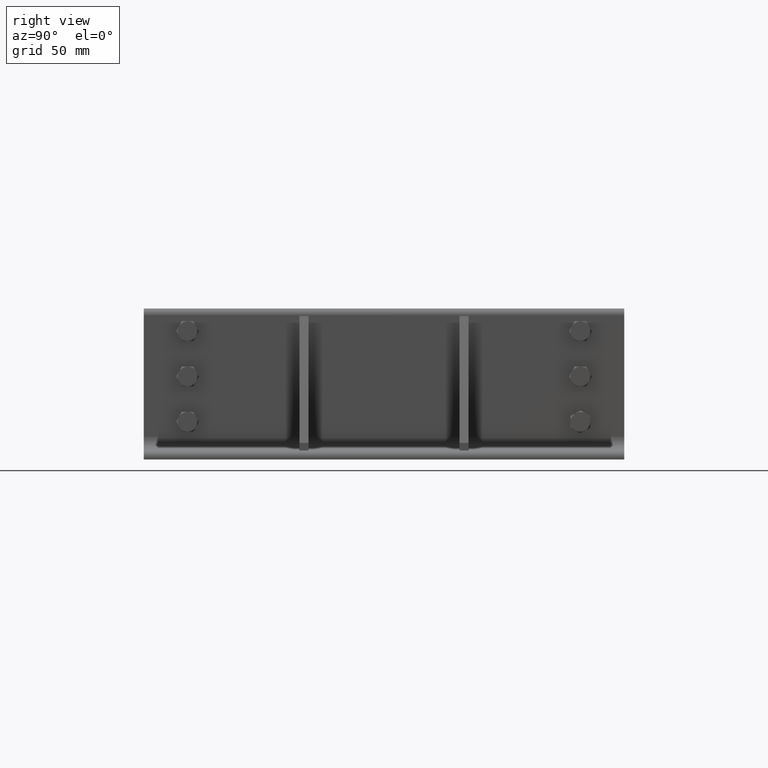
[diagram: clean part render]
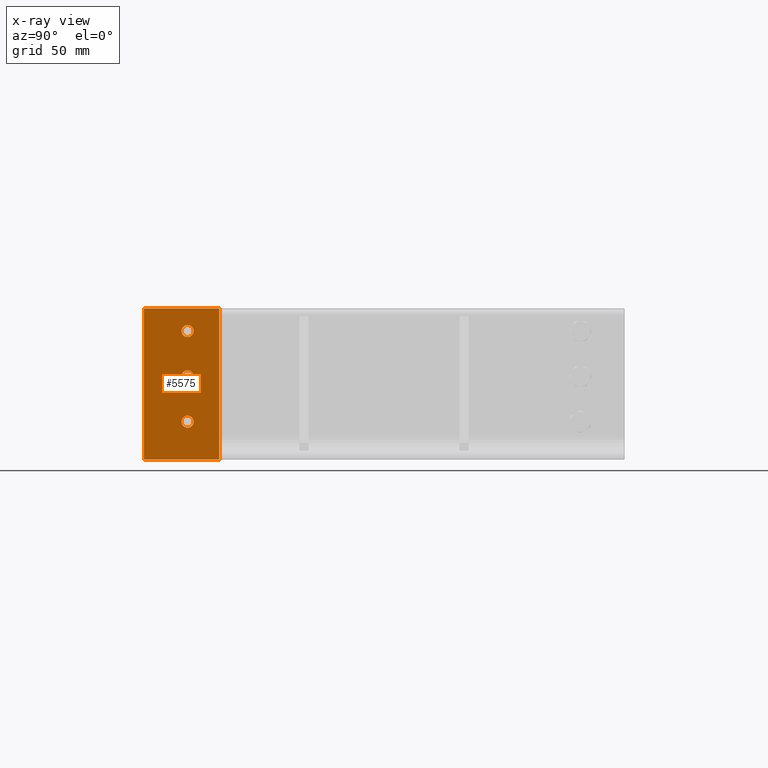
[diagram: x-ray — body ghosted, one internal face saturated and labeled with its STEP entity id]
A machine part, right view, then the same camera in x-ray: the body is ghosted and one INTERNAL B-rep face — a face not visible from any outside direction — is saturated and labeled: STEP entity #5575.
In plain terms, the highlighted planar face has unit normal (1, -0, 0).
Its self-contained STEP definition (entity closure, byte-faithful):
#5363=CARTESIAN_POINT('',(30.999999999999996,0.35,3.999999999999997));
#5364=VERTEX_POINT('',#5363);
#5365=CARTESIAN_POINT('',(34.999999999999993,0.350000000000001,3.999999999999997));
#5366=DIRECTION('',(0.0,-1.0,0.0));
#5367=DIRECTION('',(-1.0,0.0,0.0));
#5368=AXIS2_PLACEMENT_3D('',#5365,#5366,#5367);
#5369=CIRCLE('',#5368,4.0);
#5370=EDGE_CURVE('',#5364,#5364,#5369,.T.);
#5391=CARTESIAN_POINT('',(0.999999999999996,0.35,4.000000000000007));
#5392=VERTEX_POINT('',#5391);
#5393=CARTESIAN_POINT('',(4.999999999999996,0.350000000000001,4.000000000000007));
#5394=DIRECTION('',(0.0,-1.0,0.0));
#5395=DIRECTION('',(-1.0,0.0,0.0));
#5396=AXIS2_PLACEMENT_3D('',#5393,#5394,#5395);
#5397=CIRCLE('',#5396,4.0);
#5398=EDGE_CURVE('',#5392,#5392,#5397,.T.);
#5419=CARTESIAN_POINT('',(-29.000000000000004,0.35,4.000000000000016));
#5420=VERTEX_POINT('',#5419);
#5421=CARTESIAN_POINT('',(-25.000000000000004,0.350000000000001,4.000000000000016));
#5422=DIRECTION('',(0.0,-1.0,0.0));
#5423=DIRECTION('',(-1.0,0.0,0.0));
#5424=AXIS2_PLACEMENT_3D('',#5421,#5422,#5423);
#5425=CIRCLE('',#5424,4.0);
#5426=EDGE_CURVE('',#5420,#5420,#5425,.T.);
#5446=CARTESIAN_POINT('',(-50.0,0.35,25.000000000000028));
#5447=VERTEX_POINT('',#5446);
#5454=CARTESIAN_POINT('',(-50.0,0.35,-24.999999999999996));
#5455=VERTEX_POINT('',#5454);
#5456=CARTESIAN_POINT('',(-50.0,0.35,-24.999999999999986));
#5457=DIRECTION('',(0.0,0.0,1.0));
#5458=VECTOR('',#5457,50.000000000000014);
#5459=LINE('',#5456,#5458);
#5460=EDGE_CURVE('',#5455,#5447,#5459,.T.);
#5485=CARTESIAN_POINT('',(50.0,0.35,-24.999999999999996));
#5486=VERTEX_POINT('',#5485);
#5487=CARTESIAN_POINT('',(50.0,0.35,-24.999999999999996));
#5488=DIRECTION('',(-1.0,0.0,0.0));
#5489=VECTOR('',#5488,100.0);
#5490=LINE('',#5487,#5489);
#5491=EDGE_CURVE('',#5486,#5455,#5490,.T.);
#5516=CARTESIAN_POINT('',(50.0,0.35,24.999999999999996));
#5517=VERTEX_POINT('',#5516);
#5518=CARTESIAN_POINT('',(50.0,0.35,24.999999999999996));
#5519=DIRECTION('',(0.0,0.0,-1.0));
#5520=VECTOR('',#5519,49.999999999999993);
#5521=LINE('',#5518,#5520);
#5522=EDGE_CURVE('',#5517,#5486,#5521,.T.);
#5545=CARTESIAN_POINT('',(-50.0,0.35,25.000000000000028));
#5546=DIRECTION('',(1.0,0.0,0.0));
#5547=VECTOR('',#5546,100.0);
#5548=LINE('',#5545,#5547);
#5549=EDGE_CURVE('',#5447,#5517,#5548,.T.);
#5555=CARTESIAN_POINT('',(-3.552714E-015,0.35,7.105427E-015));
#5556=DIRECTION('',(0.0,1.0,0.0));
#5557=DIRECTION('',(0.0,0.0,1.0));
#5558=AXIS2_PLACEMENT_3D('',#5555,#5556,#5557);
#5559=PLANE('',#5558);
#5560=ORIENTED_EDGE('',*,*,#5549,.T.);
#5561=ORIENTED_EDGE('',*,*,#5522,.T.);
#5562=ORIENTED_EDGE('',*,*,#5491,.T.);
#5563=ORIENTED_EDGE('',*,*,#5460,.T.);
#5564=EDGE_LOOP('',(#5560,#5561,#5562,#5563));
#5565=FACE_OUTER_BOUND('',#5564,.T.);
#5566=ORIENTED_EDGE('',*,*,#5370,.T.);
#5567=EDGE_LOOP('',(#5566));
#5568=FACE_BOUND('',#5567,.T.);
#5569=ORIENTED_EDGE('',*,*,#5398,.T.);
#5570=EDGE_LOOP('',(#5569));
#5571=FACE_BOUND('',#5570,.T.);
#5572=ORIENTED_EDGE('',*,*,#5426,.T.);
#5573=EDGE_LOOP('',(#5572));
#5574=FACE_BOUND('',#5573,.T.);
#5575=ADVANCED_FACE('',(#5565,#5568,#5571,#5574),#5559,.T.);